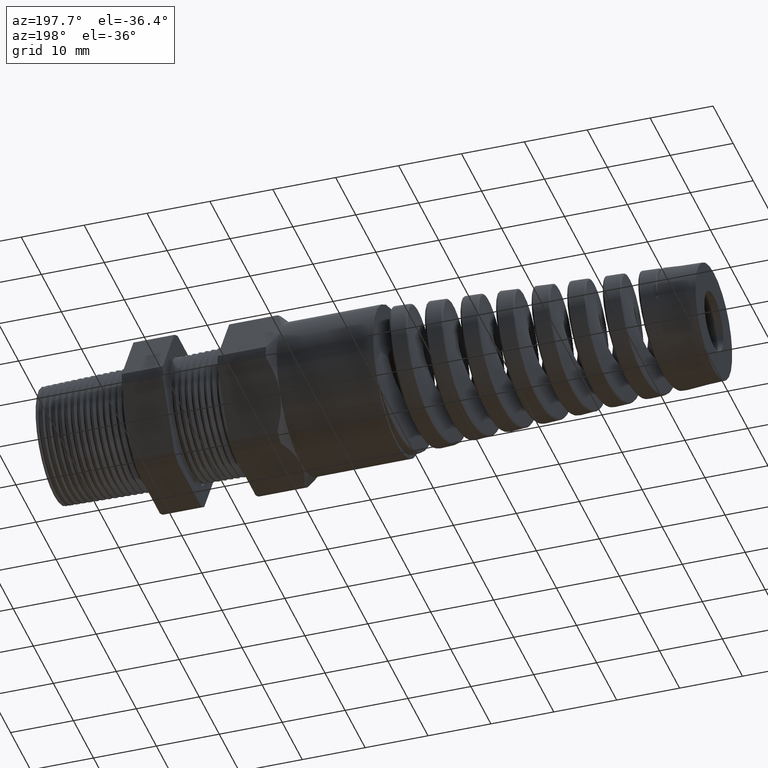
[diagram: clean part render]
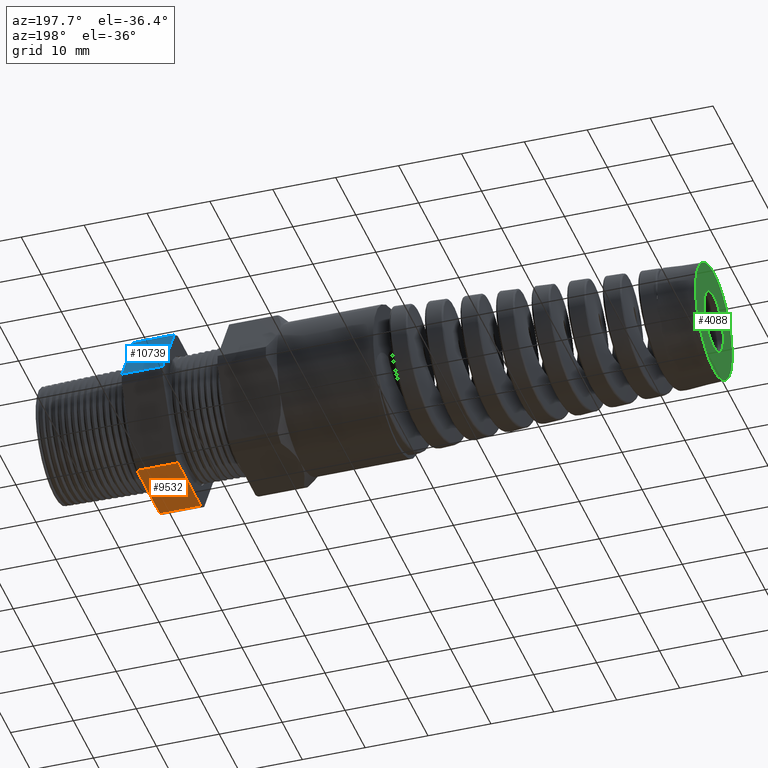
[diagram: same view with three faces highlighted in distinct colors, each labeled with its STEP entity id]
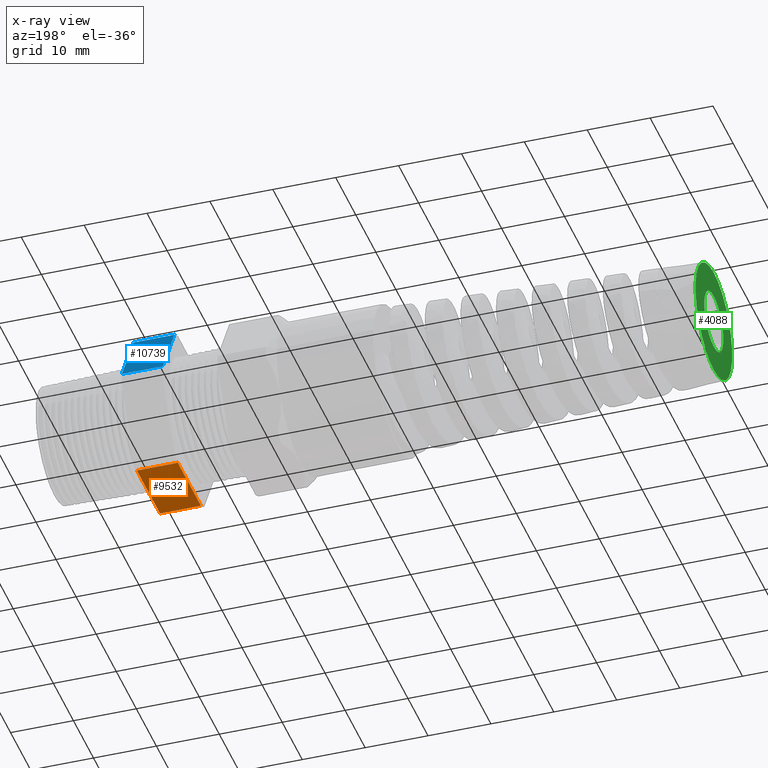
[diagram: x-ray of the same camera — body ghosted, the three highlighted faces saturated]
A machine part, auxiliary view with three faces highlighted in distinct colors.
The next image is the same camera in x-ray (body ghosted, the three faces saturated) — at least one of them is partly hidden behind the body in this view.
Their STEP definitions:

[orange] entity #9532 — the highlighted planar face has unit normal (0, 0, -1).
#2839 = CARTESIAN_POINT ( 'NONE',  ( -0.5659055118110235500, 0.2264307620443829200, -0.4700000000000000800 ) ) ;
#2874 = DIRECTION ( 'NONE',  ( -1.000000000000000000, 0.0000000000000000000, 0.0000000000000000000 ) ) ;
#2875 = VECTOR ( 'NONE', #2874, 39.37007874015748100 ) ;
#2876 = CARTESIAN_POINT ( 'NONE',  ( 0.2800000000000000300, 0.2264307620443829200, -0.4700000000000000800 ) ) ;
#2877 = LINE ( 'NONE', #2876, #2875 ) ;
#2935 = FACE_OUTER_BOUND ( 'NONE', #8094, .T. ) ;
#2961 = CARTESIAN_POINT ( 'NONE',  ( -0.5659055118110235500, -0.2264307620443828100, -0.4700000000000002000 ) ) ;
#2962 = DIRECTION ( 'NONE',  ( 0.0000000000000000000, -1.000000000000000000, 0.0000000000000000000 ) ) ;
#2963 = VECTOR ( 'NONE', #2962, 39.37007874015748100 ) ;
#2964 = CARTESIAN_POINT ( 'NONE',  ( -0.5659055118110234400, 0.9399999999999999500, -0.4700000000000002000 ) ) ;
#2965 = LINE ( 'NONE', #2964, #2963 ) ;
#2991 = DIRECTION ( 'NONE',  ( -1.000000000000000000, 0.0000000000000000000, 0.0000000000000000000 ) ) ;
#2992 = VECTOR ( 'NONE', #2991, 39.37007874015748100 ) ;
#2993 = CARTESIAN_POINT ( 'NONE',  ( 0.2800000000000000300, -0.2264307620443828100, -0.4700000000000002000 ) ) ;
#2994 = LINE ( 'NONE', #2993, #2992 ) ;
#2995 = DIRECTION ( 'NONE',  ( -1.000000000000000000, 0.0000000000000000000, 0.0000000000000000000 ) ) ;
#2996 = DIRECTION ( 'NONE',  ( 0.0000000000000000000, 0.0000000000000000000, -1.000000000000000000 ) ) ;
#2997 = CARTESIAN_POINT ( 'NONE',  ( 0.2800000000000000300, 0.2264307620443828100, -0.4700000000000002000 ) ) ;
#2998 = AXIS2_PLACEMENT_3D ( 'NONE', #2997, #2996, #2995 ) ;
#2999 = PLANE ( 'NONE',  #2998 ) ;
#3416 = DIRECTION ( 'NONE',  ( 0.0000000000000000000, 1.000000000000000000, 0.0000000000000000000 ) ) ;
#3417 = VECTOR ( 'NONE', #3416, 39.37007874015748100 ) ;
#3418 = CARTESIAN_POINT ( 'NONE',  ( -0.3100000000000000000, 0.9399999999999999500, -0.4700000000000002000 ) ) ;
#3423 = LINE ( 'NONE', #3418, #3417 ) ;
#3453 = CARTESIAN_POINT ( 'NONE',  ( -0.3100000000000000000, 0.2264307620443829200, -0.4700000000000000800 ) ) ;
#3468 = CARTESIAN_POINT ( 'NONE',  ( -0.3100000000000000000, -0.2264307620443828100, -0.4700000000000002000 ) ) ;
#8090 = VERTEX_POINT ( 'NONE', #2839 ) ;
#8094 = EDGE_LOOP ( 'NONE', ( #9401, #9386, #9396, #9134 ) ) ;
#8103 = EDGE_CURVE ( 'NONE', #16480, #8090, #2877, .T. ) ;
#9070 = EDGE_CURVE ( 'NONE', #8090, #9093, #2965, .T. ) ;
#9093 = VERTEX_POINT ( 'NONE', #2961 ) ;
#9134 = ORIENTED_EDGE ( 'NONE', *, *, #9070, .F. ) ;
#9386 = ORIENTED_EDGE ( 'NONE', *, *, #16461, .F. ) ;
#9396 = ORIENTED_EDGE ( 'NONE', *, *, #9611, .T. ) ;
#9401 = ORIENTED_EDGE ( 'NONE', *, *, #8103, .F. ) ;
#9532 = ADVANCED_FACE ( 'NONE', ( #2935 ), #2999, .T. ) ;
#9611 = EDGE_CURVE ( 'NONE', #16473, #9093, #2994, .T. ) ;
#16461 = EDGE_CURVE ( 'NONE', #16473, #16480, #3423, .T. ) ;
#16473 = VERTEX_POINT ( 'NONE', #3468 ) ;
#16480 = VERTEX_POINT ( 'NONE', #3453 ) ;

[blue] entity #10739 — the highlighted planar face has unit normal (0, 0.866, 0.5).
#2559 = DIRECTION ( 'NONE',  ( 0.0000000000000000000, 0.4999999999999998300, -0.8660254037844388200 ) ) ;
#2560 = VECTOR ( 'NONE', #2559, 39.37007874015748100 ) ;
#2561 = CARTESIAN_POINT ( 'NONE',  ( -0.5659055118110234400, 0.6420319397786862200, -0.1720319397786860500 ) ) ;
#2562 = LINE ( 'NONE', #2561, #2560 ) ;
#2924 = CARTESIAN_POINT ( 'NONE',  ( -0.5659055118110235500, 0.5202473208008776600, 0.03890520787129531800 ) ) ;
#3064 = DIRECTION ( 'NONE',  ( -1.000000000000000000, 0.0000000000000000000, 0.0000000000000000000 ) ) ;
#3065 = VECTOR ( 'NONE', #3064, 39.37007874015748100 ) ;
#3066 = CARTESIAN_POINT ( 'NONE',  ( 0.2800000000000000300, 0.2938165587564949300, 0.4310947921287048300 ) ) ;
#3067 = LINE ( 'NONE', #3066, #3065 ) ;
#3068 = DIRECTION ( 'NONE',  ( 0.0000000000000000000, -0.4999999999999998300, 0.8660254037844388200 ) ) ;
#3069 = DIRECTION ( 'NONE',  ( 0.0000000000000000000, 0.8660254037844388200, 0.4999999999999998300 ) ) ;
#3070 = CARTESIAN_POINT ( 'NONE',  ( 0.2800000000000000300, 0.2938165587564949300, 0.4310947921287048800 ) ) ;
#3071 = AXIS2_PLACEMENT_3D ( 'NONE', #3070, #3069, #3068 ) ;
#3072 = PLANE ( 'NONE',  #3071 ) ;
#3073 = FACE_OUTER_BOUND ( 'NONE', #10429, .T. ) ;
#3079 = CARTESIAN_POINT ( 'NONE',  ( -0.5659055118110235500, 0.2938165587564949300, 0.4310947921287048300 ) ) ;
#3080 = DIRECTION ( 'NONE',  ( -1.000000000000000000, 0.0000000000000000000, 0.0000000000000000000 ) ) ;
#3081 = VECTOR ( 'NONE', #3080, 39.37007874015748100 ) ;
#3082 = CARTESIAN_POINT ( 'NONE',  ( 0.2800000000000000300, 0.5202473208008776600, 0.03890520787129531800 ) ) ;
#3083 = LINE ( 'NONE', #3082, #3081 ) ;
#3290 = CARTESIAN_POINT ( 'NONE',  ( -0.3100000000000000000, 0.2938165587564949300, 0.4310947921287048300 ) ) ;
#3403 = CARTESIAN_POINT ( 'NONE',  ( -0.3100000000000000000, 0.5202473208008776600, 0.03890520787129531800 ) ) ;
#3426 = DIRECTION ( 'NONE',  ( 0.0000000000000000000, -0.4999999999999998300, 0.8660254037844388200 ) ) ;
#3427 = VECTOR ( 'NONE', #3426, 39.37007874015748100 ) ;
#3428 = CARTESIAN_POINT ( 'NONE',  ( -0.3100000000000000000, 0.6420319397786862200, -0.1720319397786860500 ) ) ;
#3429 = LINE ( 'NONE', #3428, #3427 ) ;
#7939 = EDGE_CURVE ( 'NONE', #10546, #8115, #2562, .T. ) ;
#7940 = ORIENTED_EDGE ( 'NONE', *, *, #7939, .F. ) ;
#8115 = VERTEX_POINT ( 'NONE', #2924 ) ;
#10429 = EDGE_LOOP ( 'NONE', ( #10686, #10622, #10603, #7940 ) ) ;
#10448 = EDGE_CURVE ( 'NONE', #16431, #8115, #3083, .T. ) ;
#10546 = VERTEX_POINT ( 'NONE', #3079 ) ;
#10603 = ORIENTED_EDGE ( 'NONE', *, *, #10448, .T. ) ;
#10622 = ORIENTED_EDGE ( 'NONE', *, *, #16457, .F. ) ;
#10686 = ORIENTED_EDGE ( 'NONE', *, *, #11227, .F. ) ;
#10739 = ADVANCED_FACE ( 'NONE', ( #3073 ), #3072, .T. ) ;
#11227 = EDGE_CURVE ( 'NONE', #16392, #10546, #3067, .T. ) ;
#16392 = VERTEX_POINT ( 'NONE', #3290 ) ;
#16431 = VERTEX_POINT ( 'NONE', #3403 ) ;
#16457 = EDGE_CURVE ( 'NONE', #16431, #16392, #3429, .T. ) ;

[green] entity #4088 — the highlighted planar face has unit normal (-1, 0, 0).
#2368 = CARTESIAN_POINT ( 'NONE',  ( -3.850000472440945600, -4.480303624455206300E-017, -0.3596546591389232500 ) ) ;
#2374 = CARTESIAN_POINT ( 'NONE',  ( -3.850000472440945600, 0.0000000000000000000, 0.3596546591389232500 ) ) ;
#2375 = DIRECTION ( 'NONE',  ( 0.0000000000000000000, 0.0000000000000000000, 1.000000000000000000 ) ) ;
#2376 = DIRECTION ( 'NONE',  ( -1.000000000000000000, 0.0000000000000000000, 0.0000000000000000000 ) ) ;
#2377 = CARTESIAN_POINT ( 'NONE',  ( -3.850000472440945600, 0.0000000000000000000, 0.0000000000000000000 ) ) ;
#2378 = AXIS2_PLACEMENT_3D ( 'NONE', #2377, #2376, #2375 ) ;
#2379 = CIRCLE ( 'NONE', #2378, 0.3596546591389232500 ) ;
#2390 = CARTESIAN_POINT ( 'NONE',  ( -3.850000472440945600, 0.0000000000000000000, 0.0000000000000000000 ) ) ;
#2391 = AXIS2_PLACEMENT_3D ( 'NONE', #2390, #2463, #2462 ) ;
#2392 = CIRCLE ( 'NONE', #2391, 0.1873797903815248000 ) ;
#2460 = CARTESIAN_POINT ( 'NONE',  ( -3.850000472440945600, 2.294740605156363600E-017, -0.1873797903815248000 ) ) ;
#2461 = CARTESIAN_POINT ( 'NONE',  ( -3.850000472440945600, 0.0000000000000000000, 0.1873797903815248000 ) ) ;
#2462 = DIRECTION ( 'NONE',  ( 0.0000000000000000000, 0.0000000000000000000, 1.000000000000000000 ) ) ;
#2463 = DIRECTION ( 'NONE',  ( -1.000000000000000000, 0.0000000000000000000, 0.0000000000000000000 ) ) ;
#3972 = ORIENTED_EDGE ( 'NONE', *, *, #7657, .T. ) ;
#4004 = ORIENTED_EDGE ( 'NONE', *, *, #7669, .F. ) ;
#4014 = EDGE_LOOP ( 'NONE', ( #4015, #4004 ) ) ;
#4015 = ORIENTED_EDGE ( 'NONE', *, *, #4016, .F. ) ;
#4016 = EDGE_CURVE ( 'NONE', #7671, #7672, #10438, .T. ) ;
#4032 = ORIENTED_EDGE ( 'NONE', *, *, #4067, .T. ) ;
#4050 = EDGE_LOOP ( 'NONE', ( #4032, #3972 ) ) ;
#4067 = EDGE_CURVE ( 'NONE', #7658, #7660, #10428, .T. ) ;
#4088 = ADVANCED_FACE ( 'NONE', ( #10416, #10415 ), #10421, .T. ) ;
#7657 = EDGE_CURVE ( 'NONE', #7660, #7658, #2379, .T. ) ;
#7658 = VERTEX_POINT ( 'NONE', #2374 ) ;
#7660 = VERTEX_POINT ( 'NONE', #2368 ) ;
#7669 = EDGE_CURVE ( 'NONE', #7672, #7671, #2392, .T. ) ;
#7671 = VERTEX_POINT ( 'NONE', #2461 ) ;
#7672 = VERTEX_POINT ( 'NONE', #2460 ) ;
#10411 = DIRECTION ( 'NONE',  ( 0.0000000000000000000, 0.0000000000000000000, 1.000000000000000000 ) ) ;
#10412 = DIRECTION ( 'NONE',  ( -1.000000000000000000, 0.0000000000000000000, 0.0000000000000000000 ) ) ;
#10413 = CARTESIAN_POINT ( 'NONE',  ( -3.850000472440945600, 0.0000000000000000000, 0.0000000000000000000 ) ) ;
#10414 = AXIS2_PLACEMENT_3D ( 'NONE', #10413, #10412, #10411 ) ;
#10415 = FACE_BOUND ( 'NONE', #4014, .T. ) ;
#10416 = FACE_OUTER_BOUND ( 'NONE', #4050, .T. ) ;
#10421 = PLANE ( 'NONE',  #10414 ) ;
#10424 = DIRECTION ( 'NONE',  ( 0.0000000000000000000, 0.0000000000000000000, 1.000000000000000000 ) ) ;
#10425 = DIRECTION ( 'NONE',  ( -1.000000000000000000, 0.0000000000000000000, 0.0000000000000000000 ) ) ;
#10426 = CARTESIAN_POINT ( 'NONE',  ( -3.850000472440945600, 0.0000000000000000000, 0.0000000000000000000 ) ) ;
#10427 = AXIS2_PLACEMENT_3D ( 'NONE', #10426, #10425, #10424 ) ;
#10428 = CIRCLE ( 'NONE', #10427, 0.3596546591389232500 ) ;
#10430 = DIRECTION ( 'NONE',  ( 0.0000000000000000000, 0.0000000000000000000, 1.000000000000000000 ) ) ;
#10431 = DIRECTION ( 'NONE',  ( -1.000000000000000000, 0.0000000000000000000, 0.0000000000000000000 ) ) ;
#10432 = CARTESIAN_POINT ( 'NONE',  ( -3.850000472440945600, 0.0000000000000000000, 0.0000000000000000000 ) ) ;
#10433 = AXIS2_PLACEMENT_3D ( 'NONE', #10432, #10431, #10430 ) ;
#10438 = CIRCLE ( 'NONE', #10433, 0.1873797903815248000 ) ;